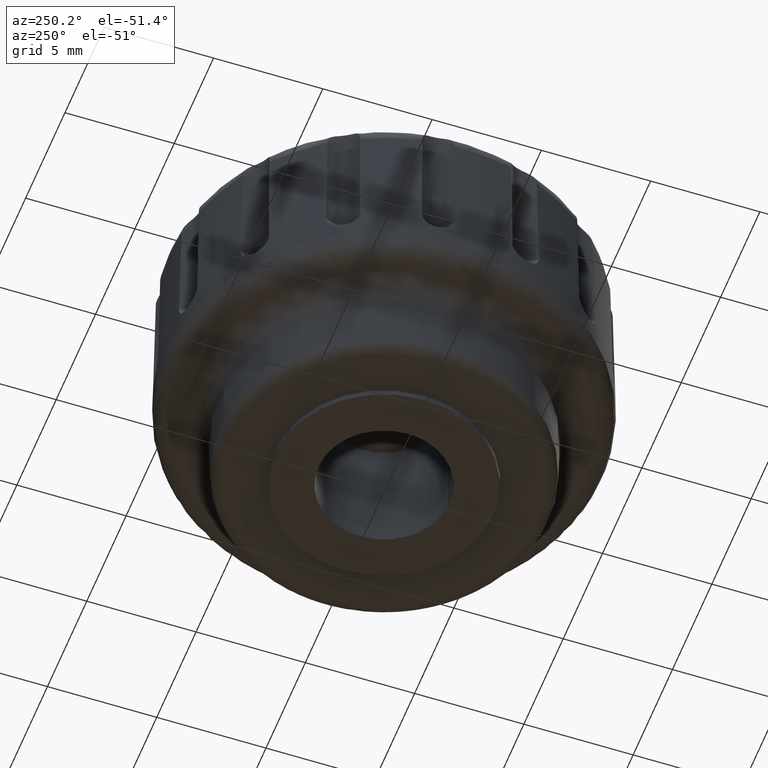
[diagram: clean part render]
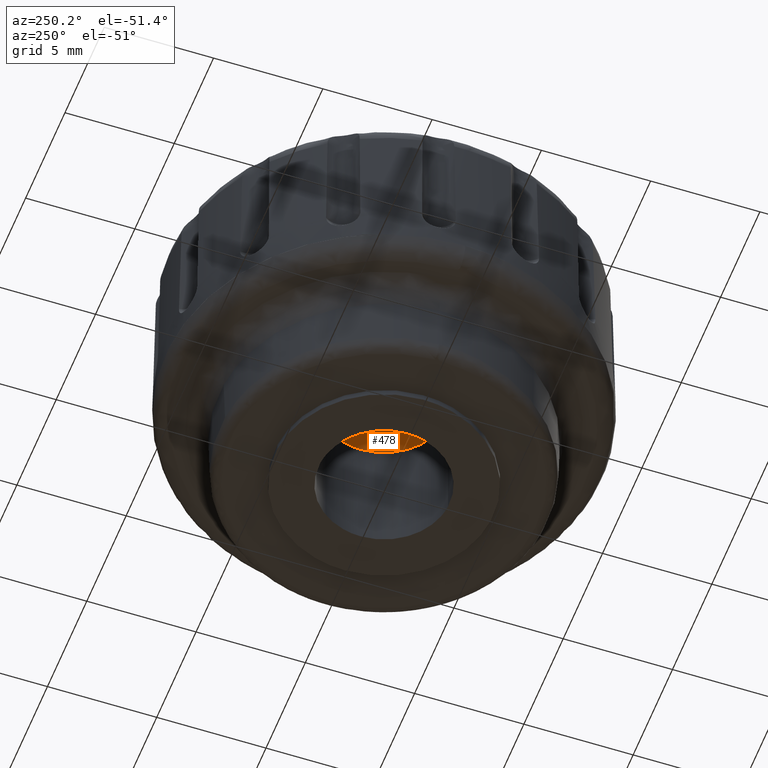
[diagram: same view with one face highlighted and labeled with its STEP entity id]
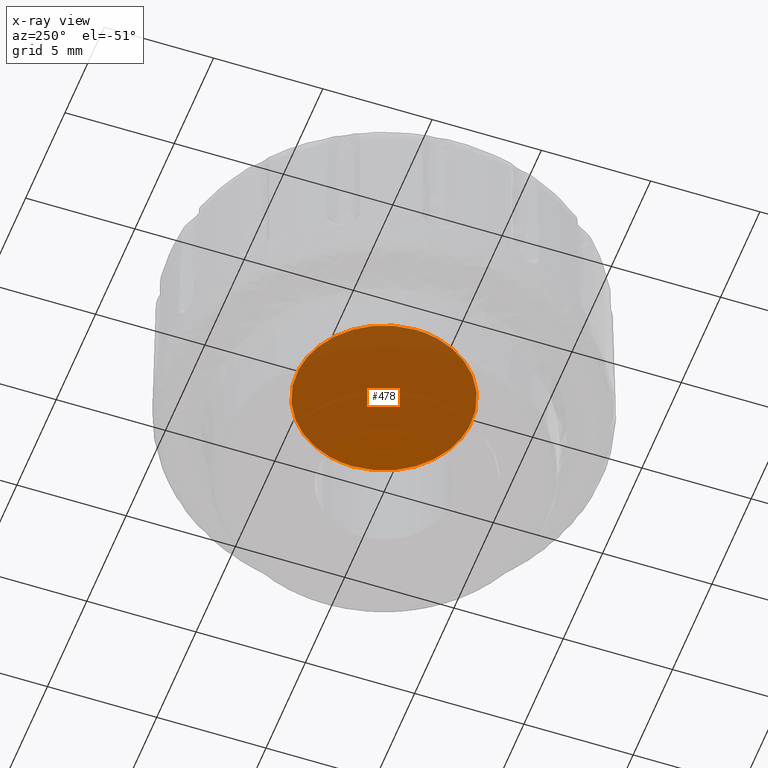
[diagram: x-ray of the same camera — body ghosted, the highlighted face saturated]
A machine part, auxiliary view. The second image highlights one B-rep face of the part: STEP entity #478.
The next image is the same camera in x-ray: the body ghosted, the highlighted face saturated — about 85% of this face is hidden behind the body in this view.
In plain terms, the highlighted face is a freeform B-spline surface patch.
Its self-contained STEP definition (entity closure, byte-faithful):
#407=CARTESIAN_POINT('',(-4.399599984494448,-4.399501549236760,6.0));
#408=CARTESIAN_POINT('',(4.399600199071169,-4.399501549236760,6.0));
#409=CARTESIAN_POINT('',(-4.399599984494448,4.399501406185612,6.0));
#410=CARTESIAN_POINT('',(4.399600199071169,4.399501406185612,6.0));
#411=B_SPLINE_SURFACE_WITH_KNOTS('',1,1,((#407,#409),(#408,#410)),.UNSPECIFIED.,.F.,.F.,.U.,(2,2),(2,2),(0.0,8.799200183565617),(0.0,8.799002955422372),.UNSPECIFIED.);
#412=CARTESIAN_POINT('',(4.0,0.0,6.0));
#413=VERTEX_POINT('',#412);
#414=CARTESIAN_POINT('',(0.244194158156846,-3.992539193686402,6.0));
#415=VERTEX_POINT('',#414);
#416=CARTESIAN_POINT('',(4.0,0.0,6.0));
#417=CARTESIAN_POINT('',(4.000000000000001,-3.762824267606333,6.000000000000001));
#418=CARTESIAN_POINT('',(0.244194158156846,-3.992539193686402,5.999999999999999));
#426=(BOUNDED_CURVE()B_SPLINE_CURVE(2,(#416,#417,#418),.UNSPECIFIED.,.F.,.U.)B_SPLINE_CURVE_WITH_KNOTS((3,3),(0.0,0.239332962241216),.UNSPECIFIED.)CURVE()GEOMETRIC_REPRESENTATION_ITEM()RATIONAL_B_SPLINE_CURVE((1.0,0.719603993284048,0.976072041671588))REPRESENTATION_ITEM(''));
#427=EDGE_CURVE('',#413,#415,#426,.T.);
#428=ORIENTED_EDGE('',*,*,#427,.T.);
#429=CARTESIAN_POINT('',(-4.0,0.0,6.0));
#430=VERTEX_POINT('',#429);
#431=CARTESIAN_POINT('',(0.244194158156846,-3.992539193686402,5.999999999999999));
#432=CARTESIAN_POINT('',(0.122211053203089,-4.000000000000001,6.0));
#433=CARTESIAN_POINT('',(0.0,-4.0,6.0));
#434=CARTESIAN_POINT('',(-4.000000000000000,-4.000000000000000,6.0));
#435=CARTESIAN_POINT('',(-4.0,0.0,6.0));
#443=(BOUNDED_CURVE()B_SPLINE_CURVE(2,(#431,#432,#433,#434,#435),.UNSPECIFIED.,.F.,.U.)B_SPLINE_CURVE_WITH_KNOTS((3,2,3),(0.239332962241216,0.250000000000000,0.500000000000000),.UNSPECIFIED.)CURVE()GEOMETRIC_REPRESENTATION_ITEM()RATIONAL_B_SPLINE_CURVE((0.976072041671588,0.987502787902500,1.0,0.707106781186548,1.0))REPRESENTATION_ITEM(''));
#444=EDGE_CURVE('',#415,#430,#443,.T.);
#445=ORIENTED_EDGE('',*,*,#444,.T.);
#446=CARTESIAN_POINT('',(-0.244194158156846,3.992539193686402,6.0));
#447=VERTEX_POINT('',#446);
#448=CARTESIAN_POINT('',(-4.0,0.0,6.0));
#449=CARTESIAN_POINT('',(-4.000000000000000,3.762824267606335,6.000000000000001));
#450=CARTESIAN_POINT('',(-0.244194158156845,3.992539193686402,6.0));
#458=(BOUNDED_CURVE()B_SPLINE_CURVE(2,(#448,#449,#450),.UNSPECIFIED.,.F.,.U.)B_SPLINE_CURVE_WITH_KNOTS((3,3),(0.500000000000000,0.739332962241216),.UNSPECIFIED.)CURVE()GEOMETRIC_REPRESENTATION_ITEM()RATIONAL_B_SPLINE_CURVE((1.0,0.719603993284048,0.976072041671589))REPRESENTATION_ITEM(''));
#459=EDGE_CURVE('',#430,#447,#458,.T.);
#460=ORIENTED_EDGE('',*,*,#459,.T.);
#461=CARTESIAN_POINT('',(-0.244194158156845,3.992539193686402,6.0));
#462=CARTESIAN_POINT('',(-0.122211053203088,4.0,5.999999999999999));
#463=CARTESIAN_POINT('',(0.0,4.0,6.0));
#464=CARTESIAN_POINT('',(4.000000000000000,4.000000000000000,6.0));
#465=CARTESIAN_POINT('',(4.0,0.0,6.0));
#473=(BOUNDED_CURVE()B_SPLINE_CURVE(2,(#461,#462,#463,#464,#465),.UNSPECIFIED.,.F.,.U.)B_SPLINE_CURVE_WITH_KNOTS((3,2,3),(0.739332962241216,0.750000000000000,1.0),.UNSPECIFIED.)CURVE()GEOMETRIC_REPRESENTATION_ITEM()RATIONAL_B_SPLINE_CURVE((0.976072041671589,0.987502787902500,1.0,0.707106781186548,1.0))REPRESENTATION_ITEM(''));
#474=EDGE_CURVE('',#447,#413,#473,.T.);
#475=ORIENTED_EDGE('',*,*,#474,.T.);
#476=EDGE_LOOP('',(#428,#445,#460,#475));
#477=FACE_OUTER_BOUND('',#476,.T.);
#478=ADVANCED_FACE('',(#477),#411,.F.);